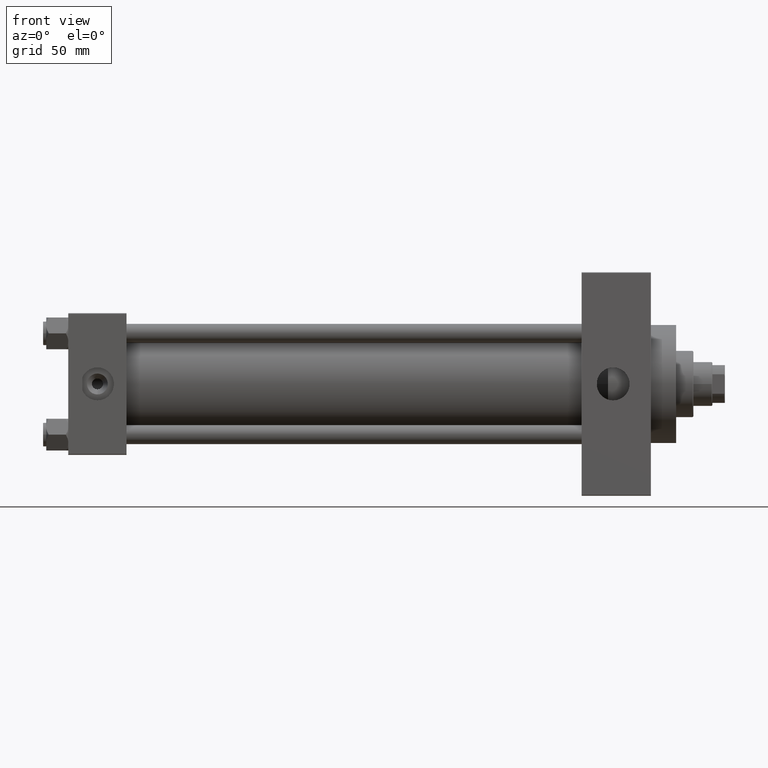
[diagram: clean part render]
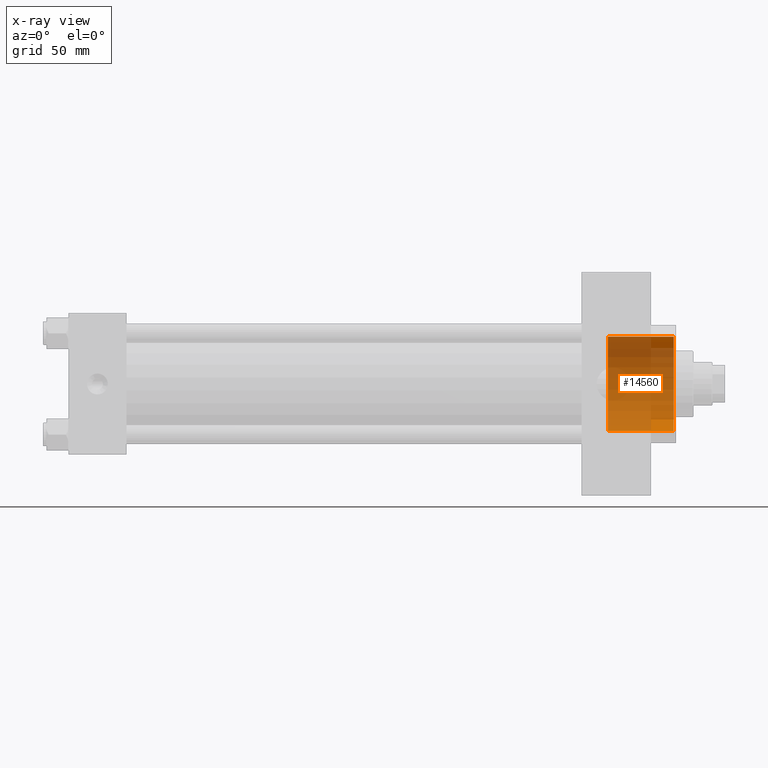
[diagram: x-ray — body ghosted, one internal face saturated and labeled with its STEP entity id]
A machine part, front view, then the same camera in x-ray: the body is ghosted and one INTERNAL B-rep face — a face not visible from any outside direction — is saturated and labeled: STEP entity #14560.
In plain terms, the highlighted cylindrical surface (partial cylindrical patch) has radius 30 mm, axis along (1, 0, 0).
Its self-contained STEP definition (entity closure, byte-faithful):
#527 = EDGE_CURVE ( 'NONE', #23135, #23939, #17147, .T. ) ;
#1297 = CYLINDRICAL_SURFACE ( 'NONE', #22035, 30.00000000000000000 ) ;
#1550 = LINE ( 'NONE', #23371, #36312 ) ;
#1719 = CARTESIAN_POINT ( 'NONE',  ( 342.7399999999999523, 0.000000000000000000, 0.000000000000000000 ) ) ;
#2363 = VERTEX_POINT ( 'NONE', #37965 ) ;
#2379 = EDGE_CURVE ( 'NONE', #2363, #23135, #1550, .T. ) ;
#5357 = FACE_OUTER_BOUND ( 'NONE', #20197, .T. ) ;
#7940 = ORIENTED_EDGE ( 'NONE', *, *, #17910, .F. ) ;
#9148 = DIRECTION ( 'NONE',  ( 0.000000000000000000, 0.000000000000000000, -1.000000000000000000 ) ) ;
#11807 = AXIS2_PLACEMENT_3D ( 'NONE', #24445, #17246, #16547 ) ;
#13450 = AXIS2_PLACEMENT_3D ( 'NONE', #1719, #33589, #9148 ) ;
#14560 = ADVANCED_FACE ( 'NONE', ( #5357 ), #1297, .F. ) ;
#16547 = DIRECTION ( 'NONE',  ( 0.000000000000000000, 0.000000000000000000, -1.000000000000000000 ) ) ;
#17147 = CIRCLE ( 'NONE', #11807, 30.00000000000000000 ) ;
#17246 = DIRECTION ( 'NONE',  ( 1.000000000000000000, 0.000000000000000000, 0.000000000000000000 ) ) ;
#17910 = EDGE_CURVE ( 'NONE', #30669, #23939, #21316, .T. ) ;
#20197 = EDGE_LOOP ( 'NONE', ( #7940, #23685, #42193, #24873 ) ) ;
#21316 = LINE ( 'NONE', #36146, #40595 ) ;
#22035 = AXIS2_PLACEMENT_3D ( 'NONE', #26946, #40828, #37237 ) ;
#23135 = VERTEX_POINT ( 'NONE', #33581 ) ;
#23371 = CARTESIAN_POINT ( 'NONE',  ( 342.7399999999999523, 0.000000000000000000, -30.00000000000000000 ) ) ;
#23685 = ORIENTED_EDGE ( 'NONE', *, *, #35987, .F. ) ;
#23939 = VERTEX_POINT ( 'NONE', #24749 ) ;
#24445 = CARTESIAN_POINT ( 'NONE',  ( 384.4999999999998863, 0.000000000000000000, 0.000000000000000000 ) ) ;
#24749 = CARTESIAN_POINT ( 'NONE',  ( 384.4999999999998863, 3.673940397442059178E-15, 30.00000000000000000 ) ) ;
#24873 = ORIENTED_EDGE ( 'NONE', *, *, #527, .T. ) ;
#26946 = CARTESIAN_POINT ( 'NONE',  ( 342.7399999999999523, 0.000000000000000000, 0.000000000000000000 ) ) ;
#27779 = CARTESIAN_POINT ( 'NONE',  ( 342.7399999999999523, 3.673940397442059178E-15, 30.00000000000000000 ) ) ;
#30669 = VERTEX_POINT ( 'NONE', #27779 ) ;
#32325 = DIRECTION ( 'NONE',  ( 1.000000000000000000, -0.000000000000000000, -0.000000000000000000 ) ) ;
#33581 = CARTESIAN_POINT ( 'NONE',  ( 384.4999999999998863, 0.000000000000000000, -30.00000000000000000 ) ) ;
#33589 = DIRECTION ( 'NONE',  ( 1.000000000000000000, 0.000000000000000000, 0.000000000000000000 ) ) ;
#34608 = DIRECTION ( 'NONE',  ( 1.000000000000000000, -0.000000000000000000, -0.000000000000000000 ) ) ;
#35987 = EDGE_CURVE ( 'NONE', #2363, #30669, #38798, .T. ) ;
#36146 = CARTESIAN_POINT ( 'NONE',  ( 342.7399999999999523, 3.673940397442059178E-15, 30.00000000000000000 ) ) ;
#36312 = VECTOR ( 'NONE', #34608, 1000.000000000000000 ) ;
#37237 = DIRECTION ( 'NONE',  ( 0.000000000000000000, 0.000000000000000000, -1.000000000000000000 ) ) ;
#37965 = CARTESIAN_POINT ( 'NONE',  ( 342.7399999999999523, 0.000000000000000000, -30.00000000000000000 ) ) ;
#38798 = CIRCLE ( 'NONE', #13450, 30.00000000000000000 ) ;
#40595 = VECTOR ( 'NONE', #32325, 1000.000000000000000 ) ;
#40828 = DIRECTION ( 'NONE',  ( 1.000000000000000000, -0.000000000000000000, -0.000000000000000000 ) ) ;
#42193 = ORIENTED_EDGE ( 'NONE', *, *, #2379, .T. ) ;